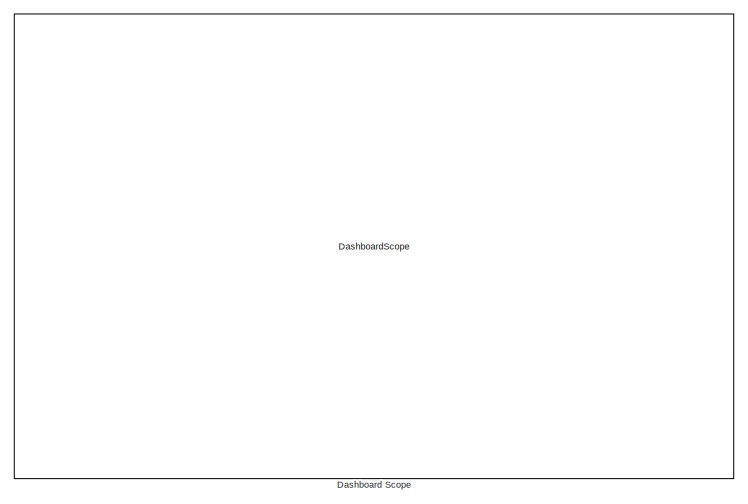
[diagram: root canvas - part 1/2, right side, full height]
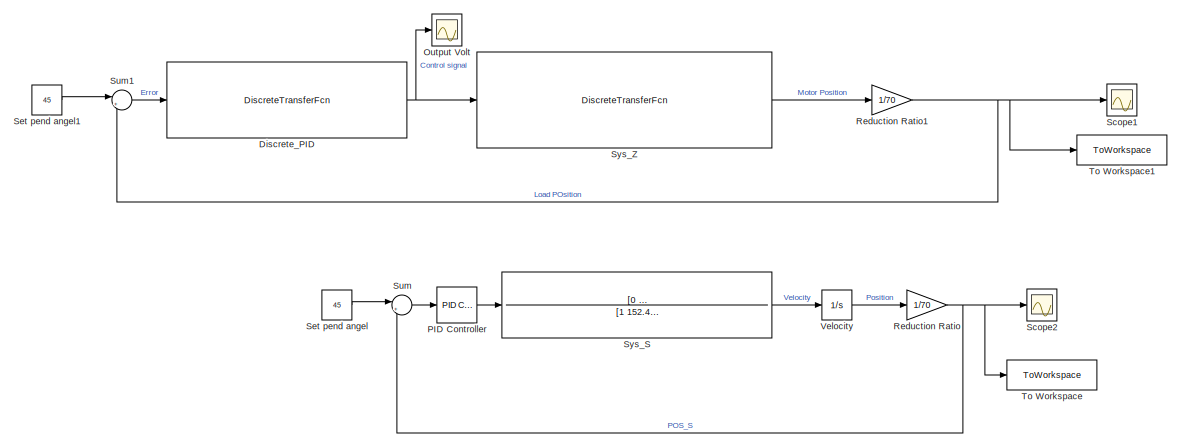
[diagram: root canvas - part 2/2, left side, full height]
MODEL slx_b5c3f0c8575b
KIND model
CONFIG AbsTol = auto
CONFIG EnableMultiTasking = off
CONFIG FixedStep = auto
CONFIG MaxStep = auto
CONFIG MinStep = auto
CONFIG RelTol = 1e-3
CONFIG SampleTimeConstraint = Unconstrained
CONFIG SolverName = VariableStepAuto
CONFIG StartTime = 0.0
CONFIG StopTime = 5
BLOCK [DashboardScope] Dashboard Scope
  Ymax = 0.2
  Ymin = 0
BLOCK [DiscreteTransferFcn] Discrete_PID
  Denominator = [1    -0.25978    -0.74022]
  InputPortMap = u0
  Numerator = [0.58617    -0.96418     0.37822]
  SampleTime = 0.02
BLOCK [Scope] Output Volt
  Floating = off
  NumInputPorts = 1
  ScopeSpecificationString = Simulink.scopes.TimeScopeBlockCfg('CurrentConfiguration', extmgr.ConfigurationSet(extmgr.Configuration('Core','General UI',true),extmgr.Configuration('Core','Source UI',true),extmgr.Configuration('Sources','WiredSimulink',true,'DataLoggingVariableName','ScopeData1','DataLoggingSaveFormat','Array','DataLoggingLimitDataPoints',true,'DataLoggingDecimation','1','SampleTime','0.02'),extmgr.Configuratio...<+1724ch>
BLOCK [Reference] PID Controller  REF=slpidlib/PID Controller
  LibrarySourceBlock = simulink/Continuous/PID Controller
  SourceBlock = slpidlib/PID Controller
  SourceType = PID 1dof
BLOCK [Gain] Reduction Ratio
  Gain = 1/70
BLOCK [Gain] Reduction Ratio1
  Gain = 1/70
BLOCK [Scope] Scope1
  Floating = off
  NumInputPorts = 1
  ScopeSpecificationString = Simulink.scopes.TimeScopeBlockCfg('CurrentConfiguration', extmgr.ConfigurationSet(extmgr.Configuration('Core','General UI',true),extmgr.Configuration('Core','Source UI',true),extmgr.Configuration('Sources','WiredSimulink',true,'DataLoggingVariableName','ScopeData1','SampleTime','0.02'),extmgr.Configuration('Visuals','Time Domain',true,'SerializedDisplays',{struct('MinYLimReal','-1','MaxYLimReal','...<+1451ch>
BLOCK [Scope] Scope2
  Floating = off
  NumInputPorts = 1
  ScopeSpecificationString = Simulink.scopes.TimeScopeBlockCfg('CurrentConfiguration', extmgr.ConfigurationSet(extmgr.Configuration('Core','General UI',true),extmgr.Configuration('Core','Source UI',true),extmgr.Configuration('Sources','WiredSimulink',true),extmgr.Configuration('Visuals','Time Domain',true,'SerializedDisplays',{struct('MinYLimReal','-1','MaxYLimReal','1','YLabelReal','','MinYLimMag','0.06837','MaxYLimMag','0.1...<+1359ch>
BLOCK [Constant] Set pend angel
  Value = 45
BLOCK [Constant] Set pend angel1
  SampleTime = 0.02
  Value = 45
BLOCK [Sum] Sum
  Inputs = |+-
BLOCK [Sum] Sum1
  Inputs = |+-
BLOCK [TransferFcn] Sys_S
  Denominator = [1      152.433471      1556.83294      40407.5883]
  Numerator = [0                   0                   0      120494782.9548]
BLOCK [DiscreteTransferFcn] Sys_Z
  Denominator = [1     -2.5613      2.0911    -0.37941    -0.15037]
  InputPortMap = u0
  Numerator = [0.44293      1.7717      2.6576      1.7717     0.44293]
  SampleTime = 0.02
BLOCK [ToWorkspace] To Workspace
  FixptAsFi = on
  MaxDataPoints = inf
  SampleTime = -1
  SaveFormat = Timeseries
  VariableName = OUTS
BLOCK [ToWorkspace] To Workspace1
  FixptAsFi = on
  MaxDataPoints = inf
  SampleTime = -1
  SaveFormat = Timeseries
  VariableName = OUTZ
BLOCK [Integrator] Velocity
NET Discrete_PID:1 -> Output Volt:1, Sys_Z:1
LINE PID Controller:1 -> Sys_S:1
NET Reduction Ratio1:1 -> Scope1:1, Sum1:2, To Workspace1:1
NET Reduction Ratio:1 -> Scope2:1, Sum:2, To Workspace:1
LINE Set pend angel1:1 -> Sum1:1
LINE Set pend angel:1 -> Sum:1
LINE Sum1:1 -> Discrete_PID:1
LINE Sum:1 -> PID Controller:1
LINE Sys_S:1 -> Velocity:1
LINE Sys_Z:1 -> Reduction Ratio1:1
LINE Velocity:1 -> Reduction Ratio:1
note: NET lines group one-source signal fan-out (src -> all destinations, sorted); 1:1 wires keep LINE
